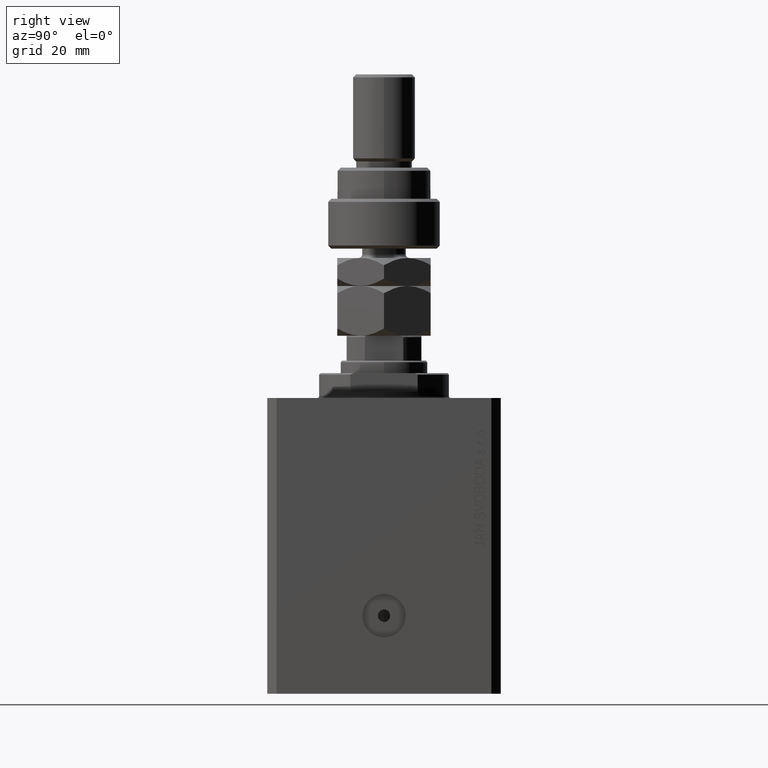
[diagram: clean part render]
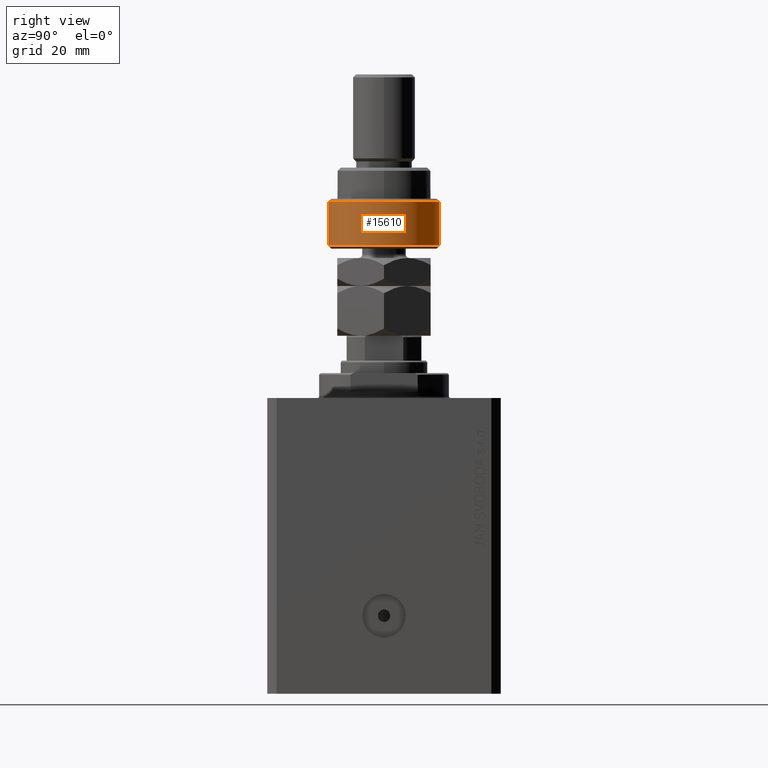
[diagram: same view with one face highlighted and labeled with its STEP entity id]
A machine part, right view. The second image highlights one B-rep face of the part: STEP entity #15610.
In plain terms, the highlighted cylindrical surface (partial cylindrical patch) has radius 18 mm, axis along (-0, -0, -1).
Its self-contained STEP definition (entity closure, byte-faithful):
#229 = DIRECTION ( 'NONE',  ( 1.000000000000000000, 0.000000000000000000, 0.000000000000000000 ) ) ;
#700 = DIRECTION ( 'NONE',  ( -0.000000000000000000, -0.000000000000000000, 1.000000000000000000 ) ) ;
#2472 = CYLINDRICAL_SURFACE ( 'NONE', #35034, 18.00000000000000000 ) ;
#2703 = FACE_OUTER_BOUND ( 'NONE', #41532, .T. ) ;
#4294 = CARTESIAN_POINT ( 'NONE',  ( 0.000000000000000000, 0.000000000000000000, 1.000000000000011324 ) ) ;
#4336 = VERTEX_POINT ( 'NONE', #47265 ) ;
#4938 = DIRECTION ( 'NONE',  ( -0.000000000000000000, -0.000000000000000000, -1.000000000000000000 ) ) ;
#6614 = AXIS2_PLACEMENT_3D ( 'NONE', #4294, #700, #229 ) ;
#7111 = LINE ( 'NONE', #46920, #45444 ) ;
#8649 = DIRECTION ( 'NONE',  ( -0.000000000000000000, -0.000000000000000000, 1.000000000000000000 ) ) ;
#9760 = EDGE_CURVE ( 'NONE', #12350, #30434, #7111, .T. ) ;
#12146 = CARTESIAN_POINT ( 'NONE',  ( -16.36306817195357155, -7.500000000000000000, 17.50000000000000000 ) ) ;
#12350 = VERTEX_POINT ( 'NONE', #47379 ) ;
#12968 = ORIENTED_EDGE ( 'NONE', *, *, #40022, .T. ) ;
#13258 = CARTESIAN_POINT ( 'NONE',  ( -16.36306817195357155, 7.500000000000000000, 1.000000000000011324 ) ) ;
#13751 = DIRECTION ( 'NONE',  ( -0.000000000000000000, -0.000000000000000000, -1.000000000000000000 ) ) ;
#15610 = ADVANCED_FACE ( 'NONE', ( #2703 ), #2472, .T. ) ;
#15620 = CARTESIAN_POINT ( 'NONE',  ( 0.000000000000000000, 0.000000000000000000, 1.000000000000011324 ) ) ;
#17357 = CARTESIAN_POINT ( 'NONE',  ( 0.000000000000000000, 0.000000000000000000, 16.00000000000000000 ) ) ;
#17504 = ORIENTED_EDGE ( 'NONE', *, *, #17639, .T. ) ;
#17639 = EDGE_CURVE ( 'NONE', #4336, #30434, #42624, .T. ) ;
#18794 = CARTESIAN_POINT ( 'NONE',  ( -16.36306817195357155, -7.500000000000000000, 1.000000000000011324 ) ) ;
#19209 = ORIENTED_EDGE ( 'NONE', *, *, #9760, .F. ) ;
#19307 = AXIS2_PLACEMENT_3D ( 'NONE', #15620, #8649, #36697 ) ;
#21270 = DIRECTION ( 'NONE',  ( -0.000000000000000000, -0.000000000000000000, -1.000000000000000000 ) ) ;
#21752 = CIRCLE ( 'NONE', #33970, 18.00000000000000000 ) ;
#25941 = DIRECTION ( 'NONE',  ( 0.000000000000000000, 0.000000000000000000, -1.000000000000000000 ) ) ;
#29071 = CARTESIAN_POINT ( 'NONE',  ( 0.000000000000000000, 0.000000000000000000, 14.99999999999999645 ) ) ;
#30327 = VERTEX_POINT ( 'NONE', #18794 ) ;
#30434 = VERTEX_POINT ( 'NONE', #13258 ) ;
#30695 = EDGE_CURVE ( 'NONE', #30327, #4336, #42232, .T. ) ;
#31071 = ORIENTED_EDGE ( 'NONE', *, *, #40462, .T. ) ;
#31968 = DIRECTION ( 'NONE',  ( -1.000000000000000000, 0.000000000000000000, 0.000000000000000000 ) ) ;
#33200 = ORIENTED_EDGE ( 'NONE', *, *, #30695, .T. ) ;
#33970 = AXIS2_PLACEMENT_3D ( 'NONE', #29071, #25941, #44384 ) ;
#35034 = AXIS2_PLACEMENT_3D ( 'NONE', #17357, #13751, #31968 ) ;
#35484 = VERTEX_POINT ( 'NONE', #36504 ) ;
#36504 = CARTESIAN_POINT ( 'NONE',  ( -16.36306817195357155, -7.500000000000000000, 14.99999999999999645 ) ) ;
#36697 = DIRECTION ( 'NONE',  ( 1.000000000000000000, 0.000000000000000000, 0.000000000000000000 ) ) ;
#39324 = VECTOR ( 'NONE', #4938, 1000.000000000000000 ) ;
#40022 = EDGE_CURVE ( 'NONE', #35484, #30327, #44995, .T. ) ;
#40462 = EDGE_CURVE ( 'NONE', #12350, #35484, #21752, .T. ) ;
#41532 = EDGE_LOOP ( 'NONE', ( #19209, #31071, #12968, #33200, #17504 ) ) ;
#42232 = CIRCLE ( 'NONE', #19307, 18.00000000000000000 ) ;
#42624 = CIRCLE ( 'NONE', #6614, 18.00000000000000000 ) ;
#44384 = DIRECTION ( 'NONE',  ( 1.000000000000000000, 0.000000000000000000, 0.000000000000000000 ) ) ;
#44995 = LINE ( 'NONE', #12146, #39324 ) ;
#45444 = VECTOR ( 'NONE', #21270, 1000.000000000000000 ) ;
#46920 = CARTESIAN_POINT ( 'NONE',  ( -16.36306817195357155, 7.500000000000000000, 17.50000000000000000 ) ) ;
#47265 = CARTESIAN_POINT ( 'NONE',  ( 18.00000000000000000, 0.000000000000000000, 1.000000000000011324 ) ) ;
#47379 = CARTESIAN_POINT ( 'NONE',  ( -16.36306817195357155, 7.500000000000000000, 14.99999999999999645 ) ) ;